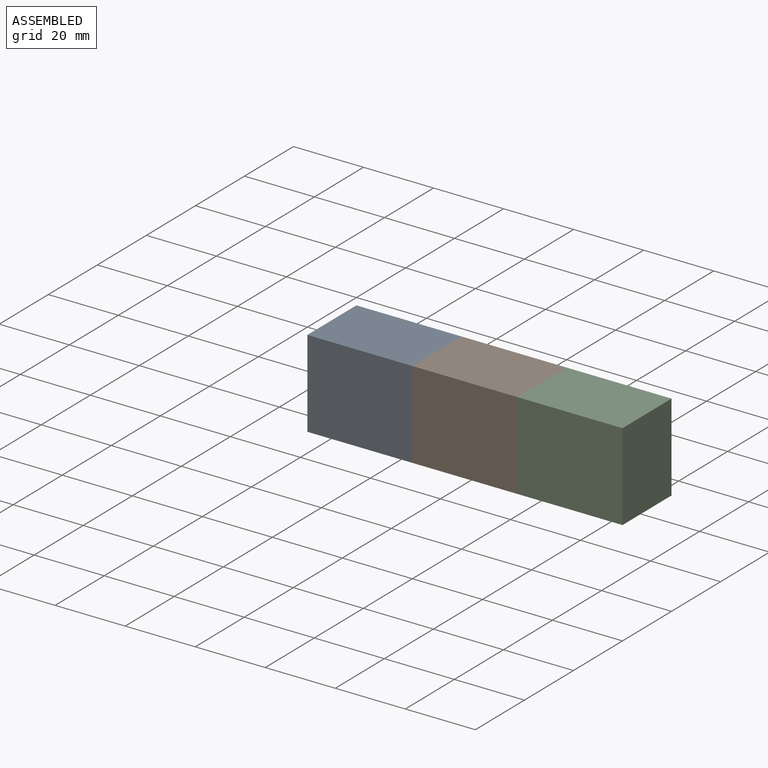
[diagram: assembled view]
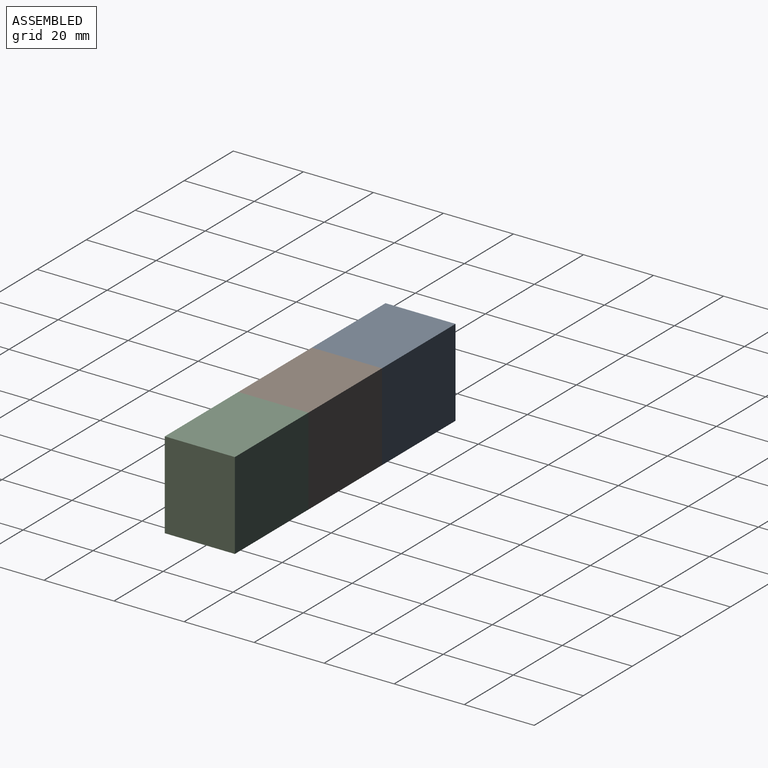
[diagram: assembled view, second angle]
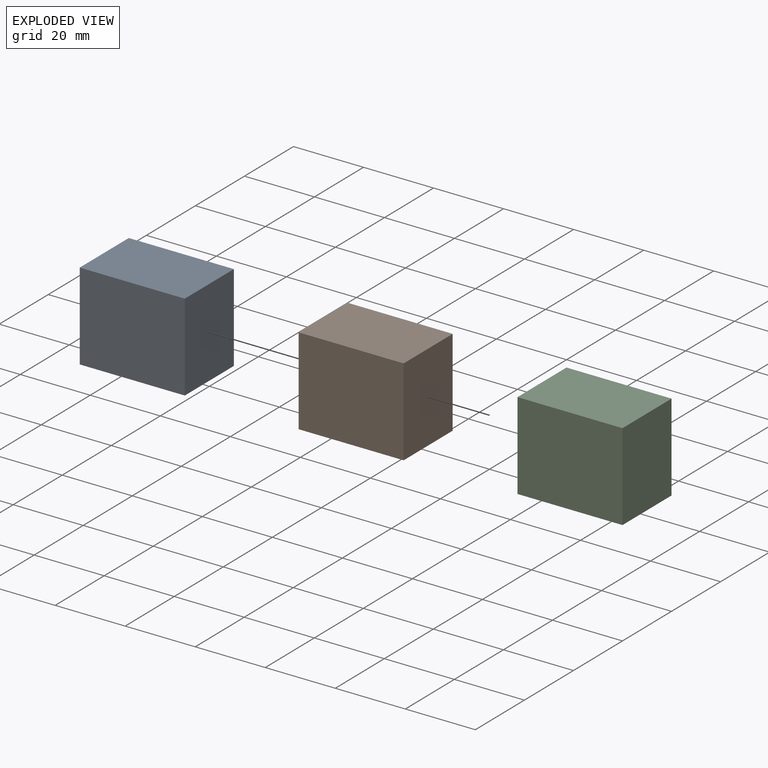
[diagram: exploded view]
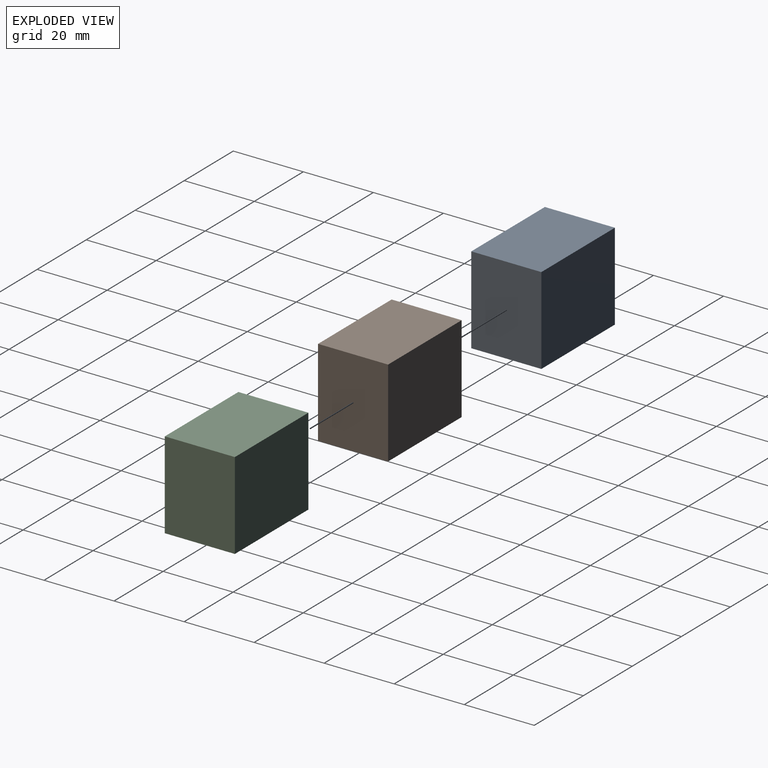
[diagram: exploded view, second angle]
ASSEMBLY  parts=3 mates=2
PART A: 6 faces, bbox 30x20x25 mm
  f0: plane 25x20mm, normal (1,0,0), area 500mm2, adj f1,f3,f4,f5
  f1: plane 30x25mm, normal (0,1,0), area 750mm2, adj f0,f2,f4,f5
  f2: plane 25x20mm, normal (-1,0,0), area 500mm2, adj f1,f3,f4,f5
  f3: plane 30x25mm, normal (0,-1,0), area 750mm2, adj f0,f2,f4,f5
  f4: plane 30x20mm, normal (0,0,1), area 600mm2, adj f0,f1,f2,f3
  f5: plane 30x20mm, normal (0,0,-1), area 600mm2, adj f0,f1,f2,f3
PART B: 6 faces, bbox 30x20x25 mm
  f0: plane 25x20mm, normal (1,0,0), area 500mm2, adj f1,f3,f4,f5
  f1: plane 30x25mm, normal (0,1,0), area 750mm2, adj f0,f2,f4,f5
  f2: plane 25x20mm, normal (-1,0,0), area 500mm2, adj f1,f3,f4,f5
  f3: plane 30x25mm, normal (0,-1,0), area 750mm2, adj f0,f2,f4,f5
  f4: plane 30x20mm, normal (0,0,1), area 600mm2, adj f0,f1,f2,f3
  f5: plane 30x20mm, normal (0,0,-1), area 600mm2, adj f0,f1,f2,f3
PART C: 6 faces, bbox 30x20x25 mm
  f0: plane 25x20mm, normal (1,0,0), area 500mm2, adj f1,f3,f4,f5
  f1: plane 30x25mm, normal (0,1,0), area 750mm2, adj f0,f2,f4,f5
  f2: plane 25x20mm, normal (-1,0,0), area 500mm2, adj f1,f3,f4,f5
  f3: plane 30x25mm, normal (0,-1,0), area 750mm2, adj f0,f2,f4,f5
  f4: plane 30x20mm, normal (0,0,1), area 600mm2, adj f0,f1,f2,f3
  f5: plane 30x20mm, normal (0,0,-1), area 600mm2, adj f0,f1,f2,f3
PLACE A t=(12,0,0)mm
PLACE B at identity fixed
PLACE C t=(-12,0,0)mm
MATE slider A.f0 <-> B.f2  axis (1,0,0) through (-15,0,12.5)mm
MATE slider B.f0 <-> C.f2  axis (1,0,0) through (15,0,12.5)mm
